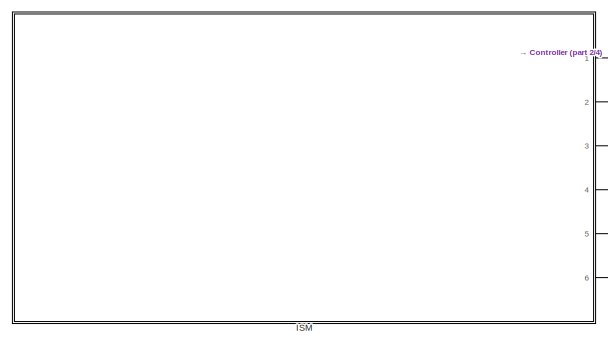
[diagram: root canvas - part 1/4, top left region]
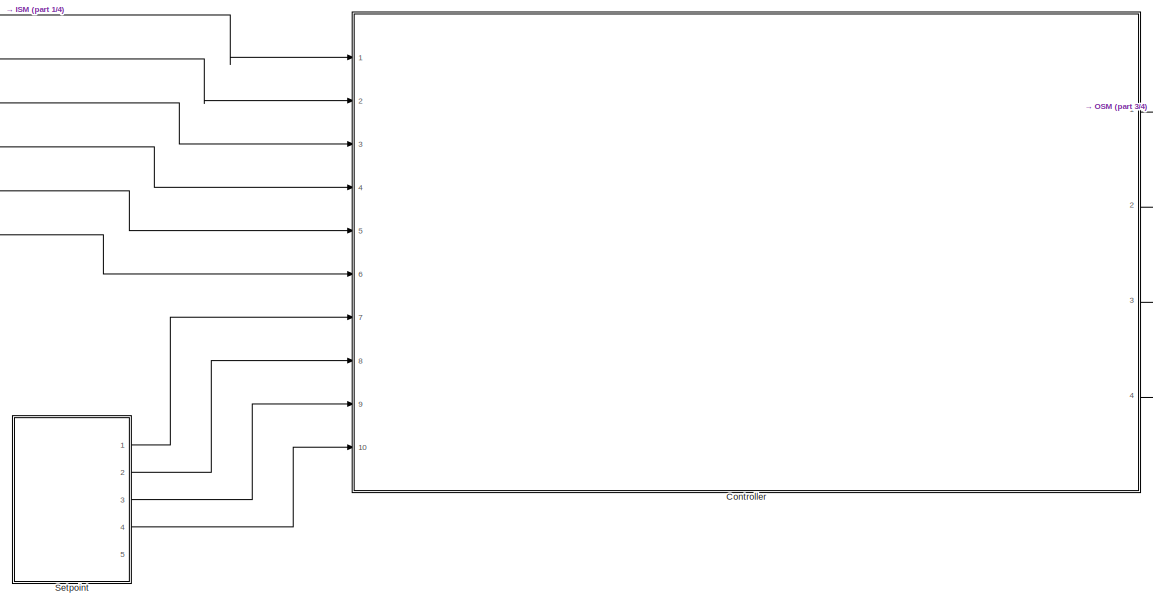
[diagram: root canvas - part 2/4, top center region]
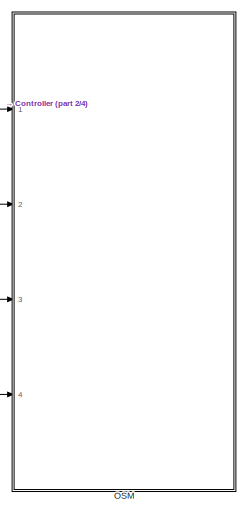
[diagram: root canvas - part 3/4, top right region]
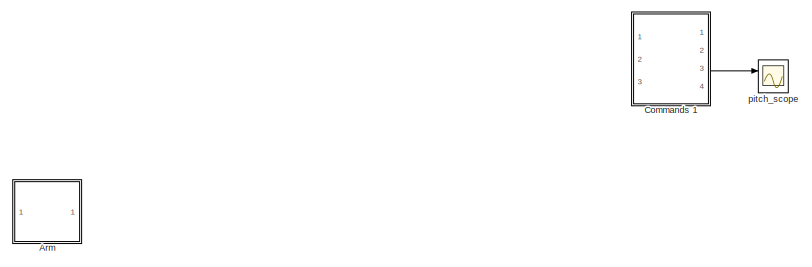
[diagram: root canvas - part 4/4, bottom center region]
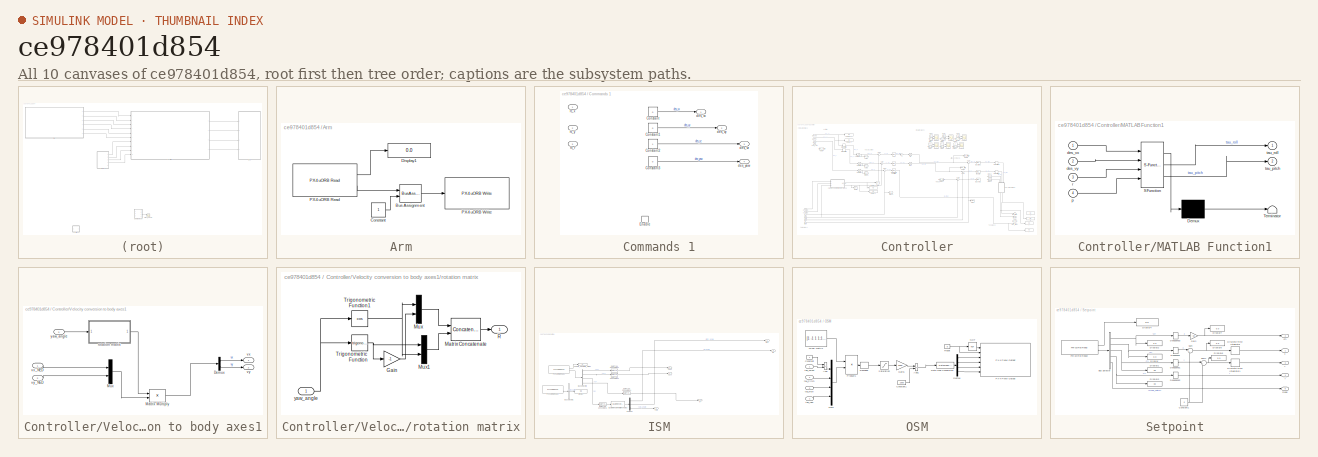
[diagram: thumbnail index - all 10 canvases of the model, root first then tree order]
MODEL slx_ce978401d854
KIND model
CONFIG AbsTol = auto
CONFIG EnableMultiTasking = on
CONFIG FixedStep = auto
CONFIG MaxStep = auto
CONFIG MinStep = auto
CONFIG RelTol = 1e-3
CONFIG SampleTimeConstraint = Unconstrained
CONFIG SolverName = FixedStepAuto
CONFIG StartTime = 0.0
CONFIG StopTime = Inf
BLOCK [SubSystem] Arm
  Ports = []
  RequestExecContextInheritance = off
BLOCK [BusAssignment] Arm/Bus Assignment
  AssignedSignals = armed
  Ports = [2, 1]
BLOCK [Constant] Arm/Constant
  OutDataTypeStr = Inherit: Inherit via back propagation
  SampleTime = SampleTime
BLOCK [Display] Arm/Display1
  Decimation = 1
  Ports = [1]
BLOCK [Reference] Arm/PX4 uORB Read  REF=px4uORBlib/PX4 uORB Read
  Ports = [0, 2]
  SourceBlock = px4uORBlib/PX4 uORB Read
  SourceProductBaseCode = PX4AUTOPILOTS
  SourceType = PX4 uORB Read
BLOCK [Reference] Arm/PX4 uORB Write  REF=px4uORBlib/PX4 uORB Write
  Ports = [1]
  SourceBlock = px4uORBlib/PX4 uORB Write
  SourceProductBaseCode = PX4AUTOPILOTS
  SourceType = PX4 uORB Write
BLOCK [SubSystem] Commands 1
  Commented = on
  Ports = [3, 4, 1]
  RequestExecContextInheritance = off
BLOCK [Constant] Commands 1/Constant
  Value = 0
BLOCK [Constant] Commands 1/Constant1
  Value = 0
BLOCK [Constant] Commands 1/Constant2
BLOCK [Constant] Commands 1/Constant3
  Value = 0
BLOCK [EnablePort] Commands 1/Enable
  Ports = []
BLOCK [Outport] Commands 1/des_vx
BLOCK [Outport] Commands 1/des_vy
  Port = 2
BLOCK [Outport] Commands 1/des_vz
  Port = 3
BLOCK [Outport] Commands 1/des_yaw
  Port = 4
BLOCK [Inport] Commands 1/rc_r
  Port = 3
BLOCK [Inport] Commands 1/rc_x
BLOCK [Inport] Commands 1/rc_y
  Port = 2
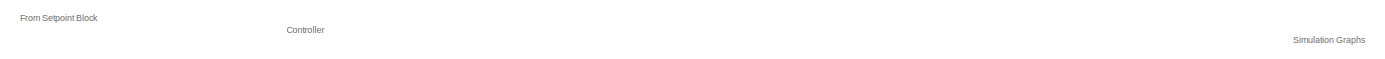
[diagram: Controller - part 1/4, top left region]
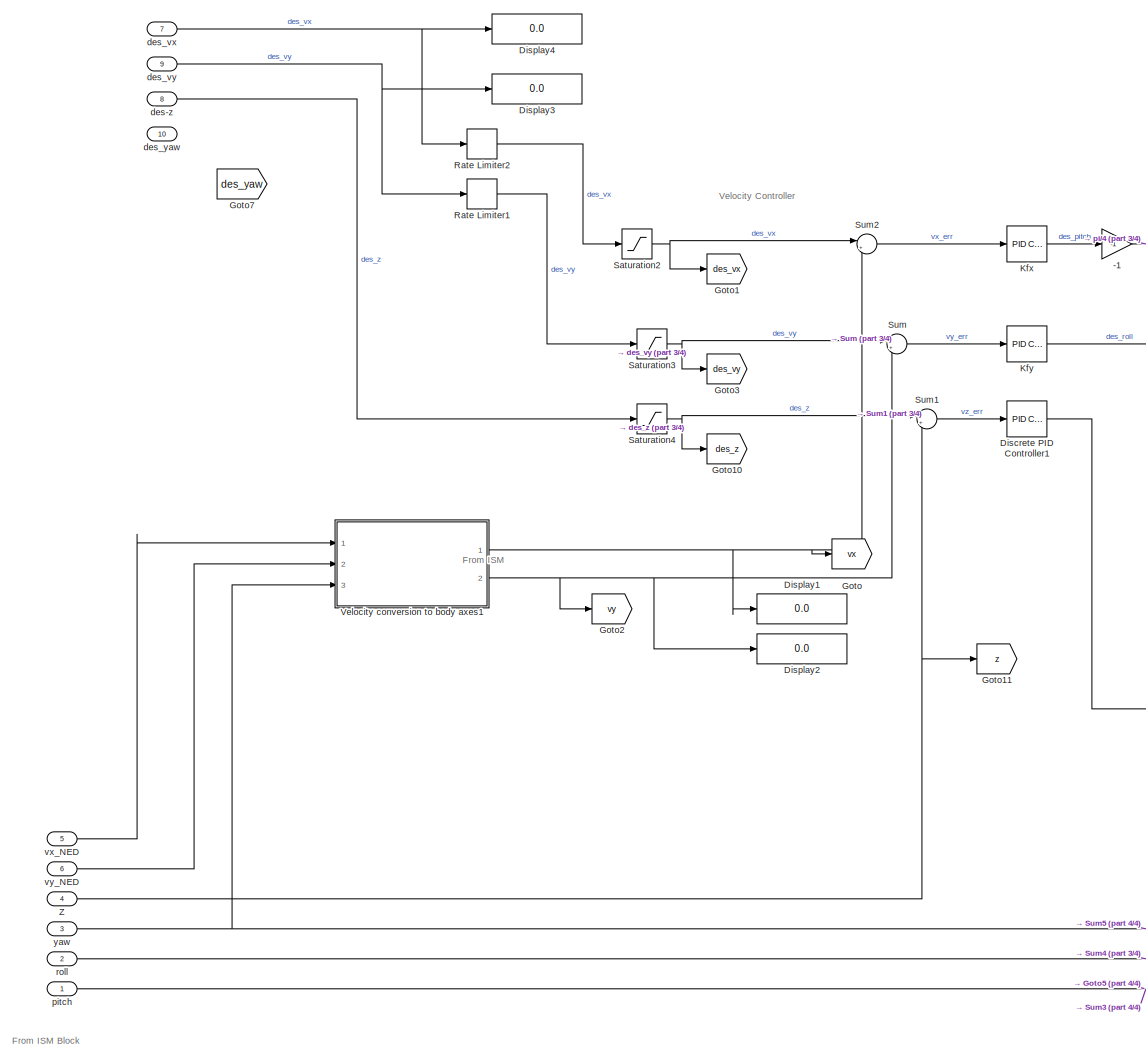
[diagram: Controller - part 2/4, left side, full height]
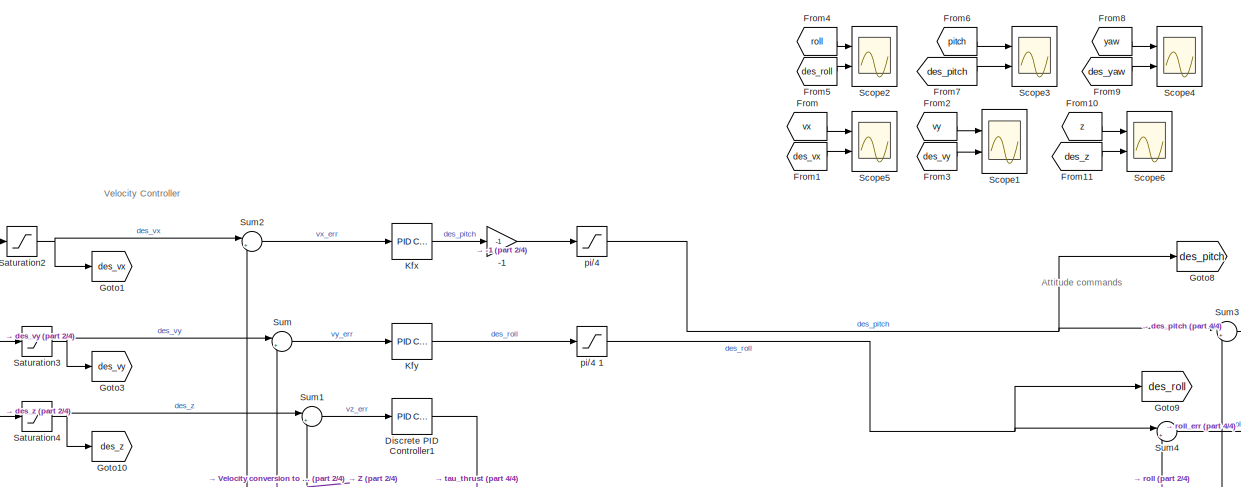
[diagram: Controller - part 3/4, top center region]
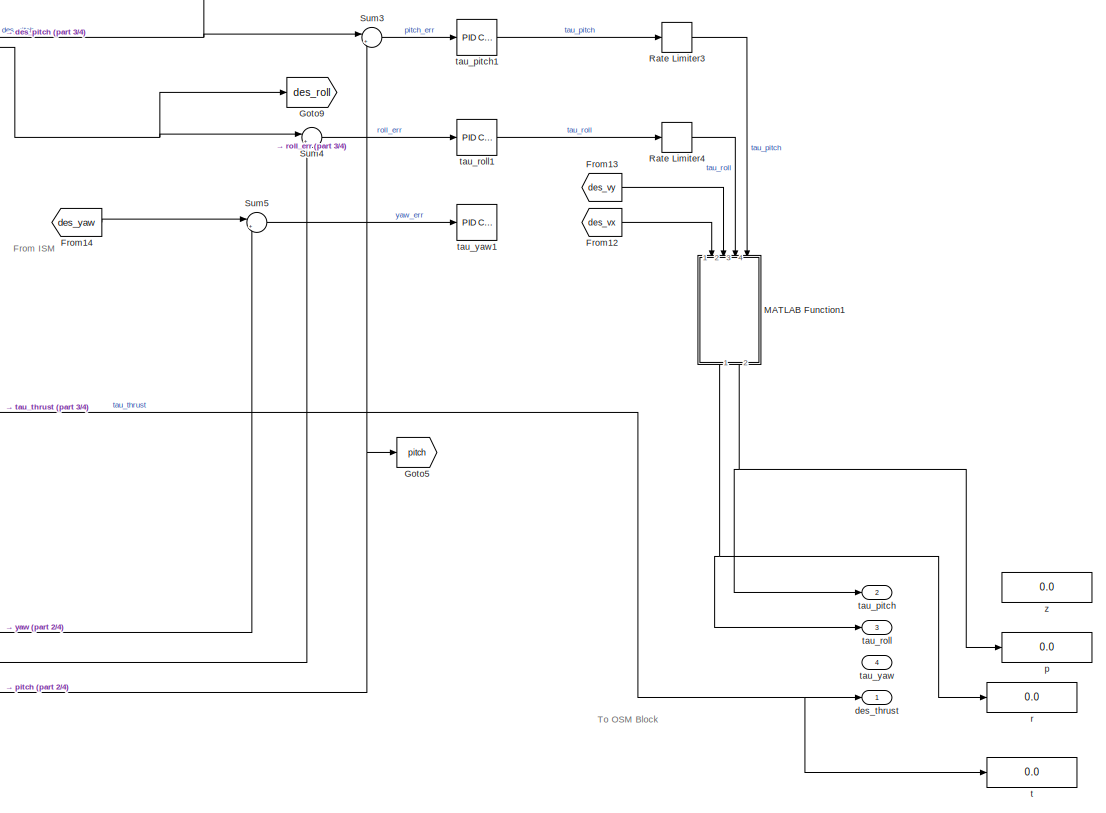
[diagram: Controller - part 4/4, middle right region]
BLOCK [SubSystem] Controller
  Ports = [10, 4]
  RequestExecContextInheritance = off
BLOCK [Gain] Controller/-1
  Gain = -1
BLOCK [Reference] Controller/Discrete PID Controller1  REF=pid_lib/PID Controller
  Ports = [1, 1]
  SourceBlock = pid_lib/PID Controller
  SourceProductBaseCode = SL
  SourceType = PID 1dof
BLOCK [Display] Controller/Display1
  Decimation = 1
  Ports = [1]
BLOCK [Display] Controller/Display2
  Decimation = 1
  Ports = [1]
BLOCK [Display] Controller/Display3
  Decimation = 1
  Ports = [1]
BLOCK [Display] Controller/Display4
  Decimation = 1
  Ports = [1]
BLOCK [From] Controller/From
  GotoTag = vx
BLOCK [From] Controller/From1
  GotoTag = des_vx
BLOCK [From] Controller/From10
  GotoTag = z
BLOCK [From] Controller/From11
  GotoTag = des_z
BLOCK [From] Controller/From12
  GotoTag = des_vx
BLOCK [From] Controller/From13
  GotoTag = des_vy
BLOCK [From] Controller/From14
  GotoTag = des_yaw
BLOCK [From] Controller/From2
  GotoTag = vy
BLOCK [From] Controller/From3
  GotoTag = des_vy
BLOCK [From] Controller/From4
  GotoTag = roll
  NameLocation = right
BLOCK [From] Controller/From5
  GotoTag = des_roll
BLOCK [From] Controller/From6
  GotoTag = pitch
BLOCK [From] Controller/From7
  GotoTag = des_pitch
BLOCK [From] Controller/From8
  GotoTag = yaw
BLOCK [From] Controller/From9
  GotoTag = des_yaw
BLOCK [Goto] Controller/Goto
  GotoTag = vx
BLOCK [Goto] Controller/Goto1
  GotoTag = des_vx
BLOCK [Goto] Controller/Goto10
  GotoTag = des_z
BLOCK [Goto] Controller/Goto11
  GotoTag = z
BLOCK [Goto] Controller/Goto2
  GotoTag = vy
BLOCK [Goto] Controller/Goto3
  GotoTag = des_vy
BLOCK [Goto] Controller/Goto5
  GotoTag = pitch
BLOCK [Goto] Controller/Goto7
  GotoTag = des_yaw
BLOCK [Goto] Controller/Goto8
  GotoTag = des_pitch
BLOCK [Goto] Controller/Goto9
  GotoTag = des_roll
BLOCK [Reference] Controller/Kfx  REF=pid_lib/PID Controller
  Ports = [1, 1]
  SourceBlock = pid_lib/PID Controller
  SourceProductBaseCode = SL
  SourceType = PID 1dof
BLOCK [Reference] Controller/Kfy  REF=pid_lib/PID Controller
  Ports = [1, 1]
  SourceBlock = pid_lib/PID Controller
  SourceProductBaseCode = SL
  SourceType = PID 1dof
BLOCK [SubSystem] Controller/MATLAB Function1
  ErrorFcn = Stateflow.Translate.translate
  NameLocation = left
  PermitHierarchicalResolution = ExplicitOnly
  Ports = [4, 2]
  RequestExecContextInheritance = off
  SFBlockType = MATLAB Function
  TreatAsAtomicUnit = on
BLOCK [Demux] Controller/MATLAB Function1/ Demux 
  Outputs = 1
  Ports = [1, 1]
BLOCK [S-Function] Controller/MATLAB Function1/ SFunction 
  EnableBusSupport = on
  FunctionName = sf_sfun
  PortCounts = [4 3]
  Ports = [4, 3]
  SFcnIsStateOwnerBlock = off
  SFunctionDeploymentMode = off
  Tag = Stateflow S-Function 4
BLOCK [Terminator] Controller/MATLAB Function1/ Terminator 
BLOCK [Inport] Controller/MATLAB Function1/des_vx
BLOCK [Inport] Controller/MATLAB Function1/des_vy
  Port = 2
BLOCK [Inport] Controller/MATLAB Function1/p
  Port = 4
BLOCK [Inport] Controller/MATLAB Function1/r
  Port = 3
BLOCK [Outport] Controller/MATLAB Function1/tau_pitch
  Port = 2
BLOCK [Outport] Controller/MATLAB Function1/tau_roll
BLOCK [RateLimiter] Controller/Rate Limiter1
  Commented = through
  FallingSlewLimit = -3
  RisingSlewLimit = 3
BLOCK [RateLimiter] Controller/Rate Limiter2
  Commented = through
  FallingSlewLimit = -3
  RisingSlewLimit = 3
BLOCK [RateLimiter] Controller/Rate Limiter3
  FallingSlewLimit = -.001
  RisingSlewLimit = .001
  SampleTimeMode = inherited
BLOCK [RateLimiter] Controller/Rate Limiter4
  FallingSlewLimit = -.001
  RisingSlewLimit = .001
  SampleTimeMode = inherited
BLOCK [Saturate] Controller/Saturation2
  LinearizeAsGain = off
  LowerLimit = -8
  UpperLimit = 8
BLOCK [Saturate] Controller/Saturation3
  LinearizeAsGain = off
  LowerLimit = -8
  UpperLimit = 8
BLOCK [Saturate] Controller/Saturation4
  LowerLimit = -6
  UpperLimit = 0
BLOCK [Scope] Controller/Scope1
  Floating = off
  NumInputPorts = 2
  Ports = [2]
  ScopeSpecificationString = Simulink.scopes.TimeScopeBlockCfg('CurrentConfiguration', extmgr.ConfigurationSet(extmgr.Configuration('Core','General UI',true),extmgr.Configuration('Core','Source UI',true),extmgr.Configuration('Sources','WiredSimulink',true,'DataLoggingVariableName','ScopeData1'),extmgr.Configuration('Visuals','Time Domain',true,'SerializedDisplays',{struct('MinYLimReal','-3.6679','MaxYLimReal','27.87917','YLab...<+1519ch>
BLOCK [Scope] Controller/Scope2
  Floating = off
  NumInputPorts = 2
  Ports = [2]
  ScopeSpecificationString = Simulink.scopes.TimeScopeBlockCfg('CurrentConfiguration', extmgr.ConfigurationSet(extmgr.Configuration('Core','General UI',true),extmgr.Configuration('Core','Source UI',true),extmgr.Configuration('Sources','WiredSimulink',true,'DataLoggingVariableName','ScopeData2'),extmgr.Configuration('Visuals','Time Domain',true,'SerializedDisplays',{struct('MinYLimReal','-0.44863','MaxYLimReal','0.48618','YLab...<+1495ch>
BLOCK [Scope] Controller/Scope3
  Floating = off
  NumInputPorts = 2
  Ports = [2]
  ScopeSpecificationString = Simulink.scopes.TimeScopeBlockCfg('CurrentConfiguration', extmgr.ConfigurationSet(extmgr.Configuration('Core','General UI',true),extmgr.Configuration('Core','Source UI',true),extmgr.Configuration('Sources','WiredSimulink',true,'DataLoggingVariableName','ScopeData3'),extmgr.Configuration('Visuals','Time Domain',true,'SerializedDisplays',{struct('MinYLimReal','-0.22209','MaxYLimReal','0.03773','YLab...<+1527ch>
BLOCK [Scope] Controller/Scope4
  Floating = off
  NumInputPorts = 2
  Ports = [2]
  ScopeSpecificationString = Simulink.scopes.TimeScopeBlockCfg('CurrentConfiguration', extmgr.ConfigurationSet(extmgr.Configuration('Core','General UI',true),extmgr.Configuration('Core','Source UI',true),extmgr.Configuration('Sources','WiredSimulink',true,'DataLoggingVariableName','ScopeData4'),extmgr.Configuration('Visuals','Time Domain',true,'SerializedDisplays',{struct('MinYLimReal','-1.00000','MaxYLimReal','1.00000','YLab...<+1579ch>
BLOCK [Scope] Controller/Scope5
  Floating = off
  NumInputPorts = 2
  Ports = [2]
  ScopeSpecificationString = Simulink.scopes.TimeScopeBlockCfg('CurrentConfiguration', extmgr.ConfigurationSet(extmgr.Configuration('Core','General UI',true),extmgr.Configuration('Core','Source UI',true),extmgr.Configuration('Sources','WiredSimulink',true,'DataLoggingVariableName','ScopeData5'),extmgr.Configuration('Visuals','Time Domain',true,'SerializedDisplays',{struct('MinYLimReal','-0.54277','MaxYLimReal','0.20512','YLab...<+1543ch>
BLOCK [Scope] Controller/Scope6
  Floating = off
  NumInputPorts = 2
  Ports = [2]
  ScopeSpecificationString = Simulink.scopes.TimeScopeBlockCfg('CurrentConfiguration', extmgr.ConfigurationSet(extmgr.Configuration('Core','General UI',true),extmgr.Configuration('Core','Source UI',true),extmgr.Configuration('Sources','WiredSimulink',true,'DataLoggingVariableName','ScopeData6'),extmgr.Configuration('Visuals','Time Domain',true,'SerializedDisplays',{struct('MinYLimReal','-6.21524','MaxYLimReal','7.5372','YLabe...<+1506ch>
BLOCK [Sum] Controller/Sum
  Inputs = |+-
  Ports = [2, 1]
BLOCK [Sum] Controller/Sum1
  Inputs = |+-
  Ports = [2, 1]
BLOCK [Sum] Controller/Sum2
  Inputs = |+-
  Ports = [2, 1]
BLOCK [Sum] Controller/Sum3
  Inputs = |+-
  Ports = [2, 1]
BLOCK [Sum] Controller/Sum4
  Inputs = |+-
  Ports = [2, 1]
BLOCK [Sum] Controller/Sum5
  Inputs = |+-
  Ports = [2, 1]
BLOCK [SubSystem] Controller/Velocity conversion to body axes1
  Ports = [3, 2]
  RequestExecContextInheritance = off
BLOCK [Demux] Controller/Velocity conversion to body axes1/Demux
  Outputs = 2
  Ports = [1, 2]
BLOCK [Product] Controller/Velocity conversion to body axes1/Matrix Multiply
  Multiplication = Matrix(*)
  Ports = [2, 1]
BLOCK [Mux] Controller/Velocity conversion to body axes1/Mux
  DisplayOption = bar
  Inputs = 2
  Ports = [2, 1]
BLOCK [SubSystem] Controller/Velocity conversion to body axes1/rotation matrix
  Ports = [1, 1]
  RequestExecContextInheritance = off
BLOCK [Gain] Controller/Velocity conversion to body axes1/rotation matrix/Gain
  Gain = -1
BLOCK [Concatenate] Controller/Velocity conversion to body axes1/rotation matrix/Matrix Concatenate
  ConcatenateDimension = 2
  Mode = Multidimensional array
  Ports = [2, 1]
BLOCK [Mux] Controller/Velocity conversion to body axes1/rotation matrix/Mux
  DisplayOption = bar
  Inputs = 2
  Ports = [2, 1]
BLOCK [Mux] Controller/Velocity conversion to body axes1/rotation matrix/Mux1
  DisplayOption = bar
  Inputs = 2
  Ports = [2, 1]
BLOCK [Outport] Controller/Velocity conversion to body axes1/rotation matrix/R
BLOCK [Trigonometry] Controller/Velocity conversion to body axes1/rotation matrix/Trigonometric Function
  Ports = [1, 1]
BLOCK [Trigonometry] Controller/Velocity conversion to body axes1/rotation matrix/Trigonometric Function1
  Operator = cos
  Ports = [1, 1]
BLOCK [Inport] Controller/Velocity conversion to body axes1/rotation matrix/yaw_angle
BLOCK [Outport] Controller/Velocity conversion to body axes1/vx
BLOCK [Inport] Controller/Velocity conversion to body axes1/vx_NED
BLOCK [Outport] Controller/Velocity conversion to body axes1/vy
  Port = 2
BLOCK [Inport] Controller/Velocity conversion to body axes1/vy_NED
  Port = 2
BLOCK [Inport] Controller/Velocity conversion to body axes1/yaw_angle
  Port = 3
BLOCK [Inport] Controller/Z
  Port = 4
BLOCK [Inport] Controller/des-z
  Port = 8
BLOCK [Outport] Controller/des_thrust
BLOCK [Inport] Controller/des_vx
  Port = 7
BLOCK [Inport] Controller/des_vy
  Port = 9
BLOCK [Inport] Controller/des_yaw
  Port = 10
BLOCK [Display] Controller/p
  Decimation = 1
  Ports = [1]
BLOCK [Saturate] Controller/pi//4
  Commented = through
  LowerLimit = -pi/16
  UpperLimit = pi/16
BLOCK [Saturate] Controller/pi//4 1
  Commented = through
  LowerLimit = -pi/16
  UpperLimit = pi/16
BLOCK [Inport] Controller/pitch
BLOCK [Display] Controller/r
  Decimation = 1
  Ports = [1]
BLOCK [Inport] Controller/roll
  Port = 2
BLOCK [Display] Controller/t
  Decimation = 1
  Ports = [1]
BLOCK [Outport] Controller/tau_pitch
  Port = 2
BLOCK [Reference] Controller/tau_pitch1  REF=pid_lib/PID Controller
  Ports = [1, 1]
  SourceBlock = pid_lib/PID Controller
  SourceProductBaseCode = SL
  SourceType = PID 1dof
BLOCK [Outport] Controller/tau_roll
  Port = 3
BLOCK [Reference] Controller/tau_roll1  REF=pid_lib/PID Controller
  Ports = [1, 1]
  SourceBlock = pid_lib/PID Controller
  SourceProductBaseCode = SL
  SourceType = PID 1dof
BLOCK [Outport] Controller/tau_yaw
  Port = 4
BLOCK [Reference] Controller/tau_yaw1  REF=pid_lib/PID Controller
  Ports = [1, 1]
  SourceBlock = pid_lib/PID Controller
  SourceProductBaseCode = SL
  SourceType = PID 1dof
BLOCK [Inport] Controller/vx_NED
  Port = 5
BLOCK [Inport] Controller/vy_NED
  Port = 6
BLOCK [Inport] Controller/yaw
  Port = 3
BLOCK [Display] Controller/z
  Decimation = 1
  Ports = [1]
BLOCK [SubSystem] ISM
  Ports = [0, 6]
  RequestExecContextInheritance = off
BLOCK [Outport] ISM/<vx>
  Port = 5
BLOCK [Outport] ISM/<vy>
  Port = 6
BLOCK [BusSelector] ISM/Bus Selector1
  OutputSignals = pressure
  Ports = [1, 1]
BLOCK [BusSelector] ISM/Bus Selector2
  OutputSignals = vx,vy,vz,q,yawspeed,z
  Ports = [1, 6]
BLOCK [DataTypeConversion] ISM/Data Type Conversion1
  OutDataTypeStr = double
  RndMeth = Floor
  SaturateOnIntegerOverflow = off
BLOCK [DataTypeConversion] ISM/Data Type Conversion2
  OutDataTypeStr = double
  RndMeth = Floor
  SaturateOnIntegerOverflow = off
BLOCK [DataTypeConversion] ISM/Data Type Conversion3
  OutDataTypeStr = double
  RndMeth = Floor
  SaturateOnIntegerOverflow = off
BLOCK [DataTypeConversion] ISM/Data Type Conversion4
  OutDataTypeStr = double
  RndMeth = Floor
  SaturateOnIntegerOverflow = off
BLOCK [Demux] ISM/Demux2
  Outputs = 3
  Ports = [1, 3]
BLOCK [Display] ISM/Display
  Decimation = 1
  Ports = [1]
BLOCK [Reference] ISM/PX4 uORB Read1  REF=px4uORBlib/PX4 uORB Read
  Ports = [0, 2]
  SourceBlock = px4uORBlib/PX4 uORB Read
  SourceProductBaseCode = PX4AUTOPILOTS
  SourceType = PX4 uORB Read
BLOCK [Reference] ISM/PX4 uORB Read2  REF=px4uORBlib/PX4 uORB Read
  Ports = [0, 2]
  SourceBlock = px4uORBlib/PX4 uORB Read
  SourceProductBaseCode = PX4AUTOPILOTS
  SourceType = PX4 uORB Read
BLOCK [Reference] ISM/Quaternions to Rotation Angles  REF=sharedtransform/Quaternions to Rotation Angles
  AttributesFormatString = Rotation Order: %<rotationOrder>
  Ports = [1, 1]
  SourceBlock = sharedtransform/Quaternions to Rotation Angles
  SourceProductBaseCode = AE,PW,MT,UV,VE,VP
  SourceType = Quat2Ang
BLOCK [Outport] ISM/pitch
BLOCK [Outport] ISM/roll
  Port = 2
BLOCK [Display] ISM/vehicle_odometry_status
  Decimation = 1
  Ports = [1]
BLOCK [Outport] ISM/yaw
  Port = 3
BLOCK [Outport] ISM/z
  Port = 4
BLOCK [SubSystem] OSM
  Ports = [4]
  RequestExecContextInheritance = off
BLOCK [Sum] OSM/Add
  IconShape = rectangular
  Ports = [2, 1]
BLOCK [Sum] OSM/Add1
  IconShape = rectangular
  Ports = [2, 1]
BLOCK [Constant] OSM/Constant
  SampleTime = SampleTime
BLOCK [Constant] OSM/Constant1
  Commented = on
  SampleTime = SampleTime
  Value = 1000
BLOCK [DataTypeConversion] OSM/Data Type Conversion
  Commented = through
  OutDataTypeStr = uint16
  RndMeth = Floor
  SaturateOnIntegerOverflow = off
BLOCK [Demux] OSM/Demux
  Ports = [1, 4]
BLOCK [Gain] OSM/Gain1
  Gain = 1000
  OutDataTypeStr = uint16
BLOCK [Constant] OSM/Mixer matrix
  NameLocation = top
  OutDataTypeStr = Inherit: Inherit via back propagation
  Value = [1 -1 1 1;1 1 -1 1;1 -1 -1 -1;1 1 1 -1]
BLOCK [Mux] OSM/Mux1
  DisplayOption = bar
  Ports = [4, 1]
BLOCK [Logic] OSM/NOT
  AllPortsSameDT = off
  IconShape = distinctive
  Operator = NOT
  OutDataTypeStr = boolean
  Ports = [1, 1]
BLOCK [Reference] OSM/PX4 PWM Output  REF=px4lib/PX4 PWM Output
  Ports = [6]
  SourceBlock = px4lib/PX4 PWM Output
  SourceProductBaseCode = PX4AUTOPILOTS
  SourceType = PX4 PWM Output
BLOCK [Product] OSM/Product1
  Multiplication = Matrix(*)
  Ports = [2, 1]
  RndMeth = Zero
BLOCK [Constant] OSM/Reset
  OutDataTypeStr = boolean
  SampleTime = SampleTime
  Value = 0
BLOCK [Reshape] OSM/Reshape
  Commented = through
  OutputDimensionality = Row vector (2-D)
  Ports = [1, 1]
BLOCK [Saturate] OSM/Saturation
  Commented = through
  LowerLimit = 0
  UpperLimit = 1
BLOCK [Inport] OSM/tau_Pitch
  Port = 2
BLOCK [Inport] OSM/tau_Roll
  Port = 3
BLOCK [Inport] OSM/tau_Thrust
BLOCK [Inport] OSM/tau_yaw
  Port = 4
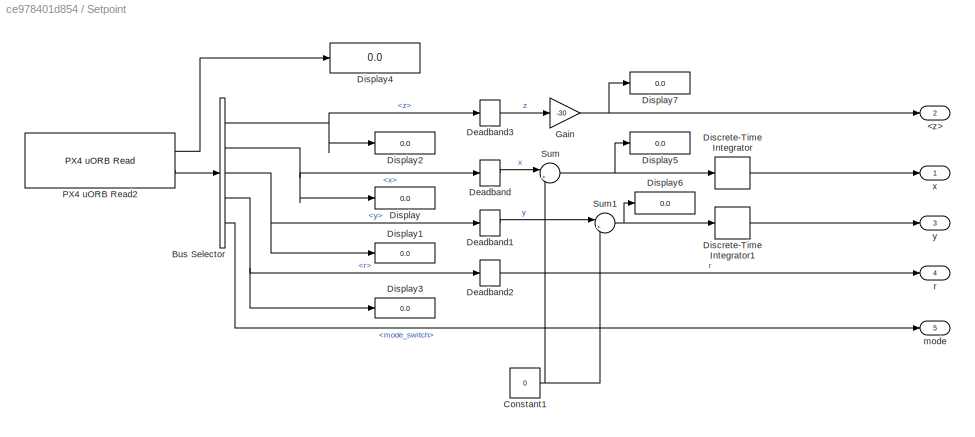
BLOCK [SubSystem] Setpoint
  Ports = [0, 5]
  RequestExecContextInheritance = off
BLOCK [Outport] Setpoint/<z>
  Port = 2
BLOCK [BusSelector] Setpoint/Bus Selector
  OutputSignals = z,x,y,r,mode_switch
  Ports = [1, 5]
BLOCK [Constant] Setpoint/Constant1
  SampleTime = SampleTime
  Value = 0
BLOCK [DeadZone] Setpoint/Deadband
  LowerValue = -0.05
  UpperValue = 0.05
BLOCK [DeadZone] Setpoint/Deadband1
  LowerValue = -0.05
  UpperValue = 0.05
BLOCK [DeadZone] Setpoint/Deadband2
  LowerValue = -0.05
  UpperValue = 0.05
BLOCK [DeadZone] Setpoint/Deadband3
  LowerValue = -0.05
  UpperValue = 0.05
BLOCK [DiscreteIntegrator] Setpoint/Discrete-Time Integrator
  Commented = through
  ICPrevOutput = DiscIntNeverNeededParam
  ICPrevScaledInput = DiscIntNeverNeededParam
  InitialConditionSetting = Auto
  Ports = [1, 1]
  SampleTime = SampleTime
  gainval = .001
BLOCK [DiscreteIntegrator] Setpoint/Discrete-Time Integrator1
  Commented = through
  ICPrevOutput = DiscIntNeverNeededParam
  ICPrevScaledInput = DiscIntNeverNeededParam
  InitialConditionSetting = Auto
  Ports = [1, 1]
  SampleTime = SampleTime
  gainval = .001
BLOCK [Display] Setpoint/Display
  Decimation = 1
  Ports = [1]
BLOCK [Display] Setpoint/Display1
  Decimation = 1
  Ports = [1]
BLOCK [Display] Setpoint/Display2
  Decimation = 1
  Ports = [1]
BLOCK [Display] Setpoint/Display3
  Decimation = 1
  Ports = [1]
BLOCK [Display] Setpoint/Display4
  Decimation = 1
  Ports = [1]
BLOCK [Display] Setpoint/Display5
  Decimation = 1
  Ports = [1]
BLOCK [Display] Setpoint/Display6
  Decimation = 1
  Ports = [1]
BLOCK [Display] Setpoint/Display7
  Decimation = 1
  Ports = [1]
BLOCK [Gain] Setpoint/Gain
  Gain = -30
BLOCK [Reference] Setpoint/PX4 uORB Read2  REF=px4uORBlib/PX4 uORB Read
  Ports = [0, 2]
  SourceBlock = px4uORBlib/PX4 uORB Read
  SourceProductBaseCode = PX4AUTOPILOTS
  SourceType = PX4 uORB Read
BLOCK [Sum] Setpoint/Sum
  Inputs = |++
  Ports = [2, 1]
BLOCK [Sum] Setpoint/Sum1
  Inputs = |++
  Ports = [2, 1]
BLOCK [Outport] Setpoint/mode
  Port = 5
BLOCK [Outport] Setpoint/r
  NameLocation = right
  Port = 4
BLOCK [Outport] Setpoint/x
BLOCK [Outport] Setpoint/y
  Port = 3
BLOCK [Scope] pitch_scope
  Commented = on
  Floating = off
  NumInputPorts = 2
  Ports = [2]
  ScopeSpecificationString = Simulink.scopes.TimeScopeBlockCfg('CurrentConfiguration', extmgr.ConfigurationSet(extmgr.Configuration('Core','General UI',true),extmgr.Configuration('Core','Source UI',true),extmgr.Configuration('Sources','WiredSimulink',true),extmgr.Configuration('Visuals','Time Domain',true,'SerializedDisplays',{struct('MinYLimReal','-0.12086','MaxYLimReal','1.08773','YLabelReal','','MinYLimMag','0.00000','MaxY...<+1347ch>
ANNOTATION Controller: From ISM Block
ANNOTATION Controller: From Setpoint Block
ANNOTATION Controller: To OSM Block
ANNOTATION Controller: Attitude commands
ANNOTATION Controller: Controller
ANNOTATION Controller: From ISM
ANNOTATION Controller: Simulation Graphs
ANNOTATION Controller: Velocity Controller
LINE Arm/Bus Assignment:1 -> Arm/PX4 uORB Write:1
LINE Arm/Constant:1 -> Arm/Bus Assignment:2
LINE Arm/PX4 uORB Read:1 -> Arm/Display1:1
LINE Arm/PX4 uORB Read:2 -> Arm/Bus Assignment:1
LINE Commands 1/Constant1:1 -> Commands 1/des_vy:1
LINE Commands 1/Constant2:1 -> Commands 1/des_vz:1
LINE Commands 1/Constant3:1 -> Commands 1/des_yaw:1
LINE Commands 1/Constant:1 -> Commands 1/des_vx:1
LINE Commands 1:3 -> pitch_scope:1
LINE Controller/-1:1 -> Controller/pi//4:1
NET Controller/Discrete PID Controller1:1 -> Controller/des_thrust:1, Controller/t:1
LINE Controller/From10:1 -> Controller/Scope6:1
LINE Controller/From11:1 -> Controller/Scope6:2
LINE Controller/From12:1 -> Controller/MATLAB Function1:1
LINE Controller/From13:1 -> Controller/MATLAB Function1:2
LINE Controller/From14:1 -> Controller/Sum5:1
LINE Controller/From1:1 -> Controller/Scope5:2
LINE Controller/From2:1 -> Controller/Scope1:1
LINE Controller/From3:1 -> Controller/Scope1:2
LINE Controller/From4:1 -> Controller/Scope2:1
LINE Controller/From5:1 -> Controller/Scope2:2
LINE Controller/From6:1 -> Controller/Scope3:1
LINE Controller/From7:1 -> Controller/Scope3:2
LINE Controller/From8:1 -> Controller/Scope4:1
LINE Controller/From9:1 -> Controller/Scope4:2
LINE Controller/From:1 -> Controller/Scope5:1
LINE Controller/Kfx:1 -> Controller/-1:1
LINE Controller/Kfy:1 -> Controller/pi//4 1:1
NET Controller/MATLAB Function1:1 -> Controller/r:1, Controller/tau_roll:1
NET Controller/MATLAB Function1:2 -> Controller/p:1, Controller/tau_pitch:1
LINE Controller/Rate Limiter1:1 -> Controller/Saturation3:1
LINE Controller/Rate Limiter2:1 -> Controller/Saturation2:1
LINE Controller/Rate Limiter3:1 -> Controller/MATLAB Function1:4
LINE Controller/Rate Limiter4:1 -> Controller/MATLAB Function1:3
NET Controller/Saturation2:1 -> Controller/Goto1:1, Controller/Sum2:1
NET Controller/Saturation3:1 -> Controller/Goto3:1, Controller/Sum:1
NET Controller/Saturation4:1 -> Controller/Goto10:1, Controller/Sum1:1
LINE Controller/Sum1:1 -> Controller/Discrete PID Controller1:1
LINE Controller/Sum2:1 -> Controller/Kfx:1
LINE Controller/Sum3:1 -> Controller/tau_pitch1:1
LINE Controller/Sum4:1 -> Controller/tau_roll1:1
LINE Controller/Sum5:1 -> Controller/tau_yaw1:1
LINE Controller/Sum:1 -> Controller/Kfy:1
LINE Controller/Velocity conversion to body axes1/Demux:1 -> Controller/Velocity conversion to body axes1/vx:1
LINE Controller/Velocity conversion to body axes1/Demux:2 -> Controller/Velocity conversion to body axes1/vy:1
LINE Controller/Velocity conversion to body axes1/Matrix Multiply:1 -> Controller/Velocity conversion to body axes1/Demux:1
LINE Controller/Velocity conversion to body axes1/Mux:1 -> Controller/Velocity conversion to body axes1/Matrix Multiply:2
LINE Controller/Velocity conversion to body axes1/rotation matrix/Gain:1 -> Controller/Velocity conversion to body axes1/rotation matrix/Mux:2
LINE Controller/Velocity conversion to body axes1/rotation matrix/Matrix Concatenate:1 -> Controller/Velocity conversion to body axes1/rotation matrix/R:1
LINE Controller/Velocity conversion to body axes1/rotation matrix/Mux1:1 -> Controller/Velocity conversion to body axes1/rotation matrix/Matrix Concatenate:2
LINE Controller/Velocity conversion to body axes1/rotation matrix/Mux:1 -> Controller/Velocity conversion to body axes1/rotation matrix/Matrix Concatenate:1
NET Controller/Velocity conversion to body axes1/rotation matrix/Trigonometric Function1:1 -> Controller/Velocity conversion to body axes1/rotation matrix/Mux1:2, Controller/Velocity conversion to body axes1/rotation matrix/Mux:1
NET Controller/Velocity conversion to body axes1/rotation matrix/Trigonometric Function:1 -> Controller/Velocity conversion to body axes1/rotation matrix/Gain:1, Controller/Velocity conversion to body axes1/rotation matrix/Mux1:1
NET Controller/Velocity conversion to body axes1/rotation matrix/yaw_angle:1 -> Controller/Velocity conversion to body axes1/rotation matrix/Trigonometric Function1:1, Controller/Velocity conversion to body axes1/rotation matrix/Trigonometric Function:1
LINE Controller/Velocity conversion to body axes1/rotation matrix:1 -> Controller/Velocity conversion to body axes1/Matrix Multiply:1
LINE Controller/Velocity conversion to body axes1/vx_NED:1 -> Controller/Velocity conversion to body axes1/Mux:1
LINE Controller/Velocity conversion to body axes1/vy_NED:1 -> Controller/Velocity conversion to body axes1/Mux:2
LINE Controller/Velocity conversion to body axes1/yaw_angle:1 -> Controller/Velocity conversion to body axes1/rotation matrix:1
NET Controller/Velocity conversion to body axes1:1 -> Controller/Display1:1, Controller/Goto:1, Controller/Sum2:2
NET Controller/Velocity conversion to body axes1:2 -> Controller/Display2:1, Controller/Goto2:1, Controller/Sum:2
NET Controller/Z:1 -> Controller/Goto11:1, Controller/Sum1:2
LINE Controller/des-z:1 -> Controller/Saturation4:1
NET Controller/des_vx:1 -> Controller/Display4:1, Controller/Rate Limiter2:1
NET Controller/des_vy:1 -> Controller/Display3:1, Controller/Rate Limiter1:1
NET Controller/pi//4 1:1 -> Controller/Goto9:1, Controller/Sum4:1
NET Controller/pi//4:1 -> Controller/Goto8:1, Controller/Sum3:1
NET Controller/pitch:1 -> Controller/Goto5:1, Controller/Sum3:2
LINE Controller/roll:1 -> Controller/Sum4:2
LINE Controller/tau_pitch1:1 -> Controller/Rate Limiter3:1
LINE Controller/tau_roll1:1 -> Controller/Rate Limiter4:1
LINE Controller/vx_NED:1 -> Controller/Velocity conversion to body axes1:1
LINE Controller/vy_NED:1 -> Controller/Velocity conversion to body axes1:2
NET Controller/yaw:1 -> Controller/Sum5:2, Controller/Velocity conversion to body axes1:3
LINE Controller:1 -> OSM:1
LINE Controller:2 -> OSM:2
LINE Controller:3 -> OSM:3
LINE Controller:4 -> OSM:4
LINE ISM/Bus Selector1:1 -> ISM/Display:1
LINE ISM/Bus Selector2:1 -> ISM/Data Type Conversion2:1
LINE ISM/Bus Selector2:2 -> ISM/Data Type Conversion3:1
LINE ISM/Bus Selector2:4 -> ISM/Data Type Conversion1:1
LINE ISM/Bus Selector2:6 -> ISM/Data Type Conversion4:1
LINE ISM/Data Type Conversion1:1 -> ISM/Quaternions to Rotation Angles:1
LINE ISM/Data Type Conversion2:1 -> ISM/<vx>:1
LINE ISM/Data Type Conversion3:1 -> ISM/<vy>:1
LINE ISM/Data Type Conversion4:1 -> ISM/z:1
LINE ISM/Demux2:1 -> ISM/roll:1
LINE ISM/Demux2:2 -> ISM/pitch:1
LINE ISM/Demux2:3 -> ISM/yaw:1
LINE ISM/PX4 uORB Read1:1 -> ISM/vehicle_odometry_status:1
LINE ISM/PX4 uORB Read1:2 -> ISM/Bus Selector2:1
LINE ISM/PX4 uORB Read2:2 -> ISM/Bus Selector1:1
LINE ISM/Quaternions to Rotation Angles:1 -> ISM/Demux2:1
LINE ISM:1 -> Controller:1
LINE ISM:2 -> Controller:2
LINE ISM:3 -> Controller:3
LINE ISM:4 -> Controller:4
LINE ISM:5 -> Controller:5
LINE ISM:6 -> Controller:6
LINE OSM/Add1:1 -> OSM/Data Type Conversion:1
LINE OSM/Add:1 -> OSM/Mux1:1
LINE OSM/Constant1:1 -> OSM/Add1:2
LINE OSM/Constant:1 -> OSM/Add:1
LINE OSM/Data Type Conversion:1 -> OSM/Demux:1
LINE OSM/Demux:1 -> OSM/PX4 PWM Output:3
LINE OSM/Demux:2 -> OSM/PX4 PWM Output:4
LINE OSM/Demux:3 -> OSM/PX4 PWM Output:5
LINE OSM/Demux:4 -> OSM/PX4 PWM Output:6
LINE OSM/Gain1:1 -> OSM/Add1:1
LINE OSM/Mixer matrix:1 -> OSM/Product1:1
LINE OSM/Mux1:1 -> OSM/Product1:2
LINE OSM/NOT:1 -> OSM/PX4 PWM Output:1
LINE OSM/Product1:1 -> OSM/Reshape:1
NET OSM/Reset:1 -> OSM/NOT:1, OSM/PX4 PWM Output:2
LINE OSM/Reshape:1 -> OSM/Saturation:1
LINE OSM/Saturation:1 -> OSM/Gain1:1
LINE OSM/tau_Pitch:1 -> OSM/Mux1:2
LINE OSM/tau_Roll:1 -> OSM/Mux1:3
LINE OSM/tau_Thrust:1 -> OSM/Add:2
LINE OSM/tau_yaw:1 -> OSM/Mux1:4
NET Setpoint/Bus Selector:1 -> Setpoint/Deadband3:1, Setpoint/Display2:1
NET Setpoint/Bus Selector:2 -> Setpoint/Deadband:1, Setpoint/Display:1
NET Setpoint/Bus Selector:3 -> Setpoint/Deadband1:1, Setpoint/Display1:1
NET Setpoint/Bus Selector:4 -> Setpoint/Deadband2:1, Setpoint/Display3:1
LINE Setpoint/Bus Selector:5 -> Setpoint/mode:1
NET Setpoint/Constant1:1 -> Setpoint/Sum1:2, Setpoint/Sum:2
LINE Setpoint/Deadband1:1 -> Setpoint/Sum1:1
LINE Setpoint/Deadband2:1 -> Setpoint/r:1
LINE Setpoint/Deadband3:1 -> Setpoint/Gain:1
LINE Setpoint/Deadband:1 -> Setpoint/Sum:1
LINE Setpoint/Discrete-Time Integrator1:1 -> Setpoint/y:1
LINE Setpoint/Discrete-Time Integrator:1 -> Setpoint/x:1
NET Setpoint/Gain:1 -> Setpoint/<z>:1, Setpoint/Display7:1
LINE Setpoint/PX4 uORB Read2:1 -> Setpoint/Display4:1
LINE Setpoint/PX4 uORB Read2:2 -> Setpoint/Bus Selector:1
NET Setpoint/Sum1:1 -> Setpoint/Discrete-Time Integrator1:1, Setpoint/Display6:1
NET Setpoint/Sum:1 -> Setpoint/Discrete-Time Integrator:1, Setpoint/Display5:1
LINE Setpoint:1 -> Controller:7
LINE Setpoint:2 -> Controller:8
LINE Setpoint:3 -> Controller:9
LINE Setpoint:4 -> Controller:10
note: NET lines group one-source signal fan-out (src -> all destinations, sorted); 1:1 wires keep LINE
CHART Controller/MATLAB Function1 states=1 transitions=1
  STATE_LABEL 'eML_blk_kernel()'
  STATE_LABEL 'SCRIPT:\nfunction [tau_roll, tau_pitch] = fcn(des_vx, des_vy, r, p)\n    \n    if(des_vx == 0)\n        tau_pitch = 0;\n    else\n        tau_pitch = p;\n    end\n    if(des_vy == 0)\n        tau_roll = 0;\n    else\n        tau_roll = r;\n    end\nend'
CHART  states=0 transitions=0
